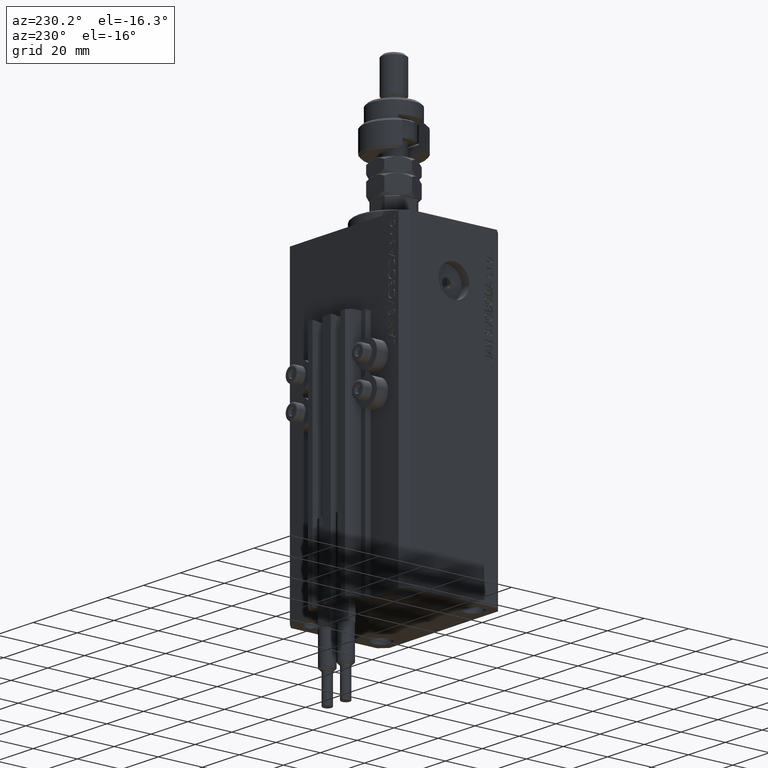
[diagram: clean part render]
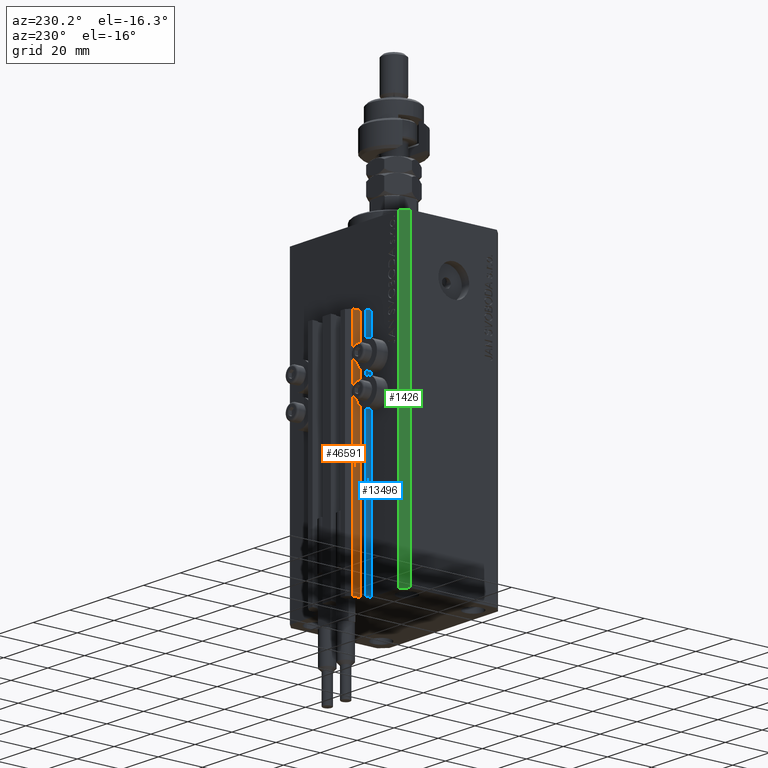
[diagram: same view with three faces highlighted in distinct colors, each labeled with its STEP entity id]
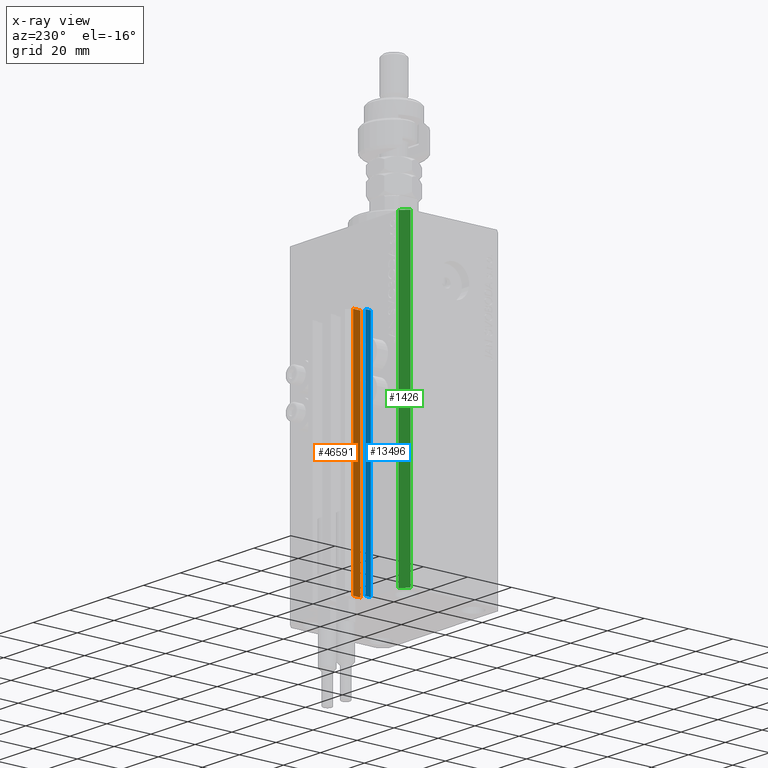
[diagram: x-ray of the same camera — body ghosted, the three highlighted faces saturated]
A machine part, auxiliary view with three faces highlighted in distinct colors.
The next image is the same camera in x-ray (body ghosted, the three faces saturated) — at least one of them is partly hidden behind the body in this view.
Their STEP definitions:

[orange] entity #46591 — the highlighted planar face has unit normal (-1, 0, 0).
#27 = DIRECTION ( 'NONE',  ( -1.000000000000000000, 0.000000000000000000, 0.000000000000000000 ) ) ;
#70 = EDGE_LOOP ( 'NONE', ( #36078, #47168, #4438, #34775 ) ) ;
#849 = VECTOR ( 'NONE', #13190, 1000.000000000000000 ) ;
#1422 = EDGE_CURVE ( 'NONE', #47834, #6404, #37184, .T. ) ;
#3735 = AXIS2_PLACEMENT_3D ( 'NONE', #40113, #27, #43222 ) ;
#4438 = ORIENTED_EDGE ( 'NONE', *, *, #31235, .T. ) ;
#4721 = LINE ( 'NONE', #36337, #849 ) ;
#4899 = LINE ( 'NONE', #9263, #41911 ) ;
#6404 = VERTEX_POINT ( 'NONE', #26199 ) ;
#7615 = VERTEX_POINT ( 'NONE', #34081 ) ;
#9263 = CARTESIAN_POINT ( 'NONE',  ( -12.00000000000000000, 28.49999999999948841, -137.0000000000000000 ) ) ;
#9683 = VECTOR ( 'NONE', #10868, 1000.000000000000000 ) ;
#10868 = DIRECTION ( 'NONE',  ( 0.000000000000000000, -1.000000000000000000, 0.000000000000000000 ) ) ;
#13190 = DIRECTION ( 'NONE',  ( 0.000000000000000000, -1.000000000000000000, 0.000000000000000000 ) ) ;
#20060 = DIRECTION ( 'NONE',  ( 0.000000000000000000, 0.000000000000000000, 1.000000000000000000 ) ) ;
#23420 = FACE_OUTER_BOUND ( 'NONE', #70, .T. ) ;
#25102 = CARTESIAN_POINT ( 'NONE',  ( -12.00000000000000000, 25.19999999999949125, -137.0000000000000000 ) ) ;
#26033 = EDGE_CURVE ( 'NONE', #7615, #6404, #33756, .T. ) ;
#26199 = CARTESIAN_POINT ( 'NONE',  ( -12.00000000000000000, 25.19999999999949125, -33.00000000000000000 ) ) ;
#26550 = CARTESIAN_POINT ( 'NONE',  ( -12.00000000000000000, 28.49999999999948841, -33.00000000000000000 ) ) ;
#28187 = DIRECTION ( 'NONE',  ( 0.000000000000000000, 0.000000000000000000, 1.000000000000000000 ) ) ;
#30709 = EDGE_CURVE ( 'NONE', #35732, #7615, #4899, .T. ) ;
#31235 = EDGE_CURVE ( 'NONE', #35732, #47834, #4721, .T. ) ;
#33756 = LINE ( 'NONE', #26550, #9683 ) ;
#34081 = CARTESIAN_POINT ( 'NONE',  ( -12.00000000000000000, 28.49999999999948841, -33.00000000000000000 ) ) ;
#34775 = ORIENTED_EDGE ( 'NONE', *, *, #1422, .T. ) ;
#35732 = VERTEX_POINT ( 'NONE', #36492 ) ;
#36078 = ORIENTED_EDGE ( 'NONE', *, *, #26033, .F. ) ;
#36337 = CARTESIAN_POINT ( 'NONE',  ( -12.00000000000000000, 28.49999999999948841, -137.0000000000000000 ) ) ;
#36492 = CARTESIAN_POINT ( 'NONE',  ( -12.00000000000000000, 28.49999999999948841, -137.0000000000000000 ) ) ;
#37184 = LINE ( 'NONE', #25102, #45880 ) ;
#39111 = PLANE ( 'NONE',  #3735 ) ;
#40113 = CARTESIAN_POINT ( 'NONE',  ( -12.00000000000000000, 28.49999999999948841, -137.0000000000000000 ) ) ;
#41911 = VECTOR ( 'NONE', #20060, 1000.000000000000000 ) ;
#43222 = DIRECTION ( 'NONE',  ( 0.000000000000000000, 0.000000000000000000, 1.000000000000000000 ) ) ;
#45880 = VECTOR ( 'NONE', #28187, 1000.000000000000000 ) ;
#46008 = CARTESIAN_POINT ( 'NONE',  ( -12.00000000000000000, 25.19999999999949125, -137.0000000000000000 ) ) ;
#46591 = ADVANCED_FACE ( 'NONE', ( #23420 ), #39111, .T. ) ;
#47168 = ORIENTED_EDGE ( 'NONE', *, *, #30709, .F. ) ;
#47834 = VERTEX_POINT ( 'NONE', #46008 ) ;

[blue] entity #13496 — the highlighted planar face has unit normal (-1, 0, 0).
#4586 = ORIENTED_EDGE ( 'NONE', *, *, #25906, .F. ) ;
#5971 = EDGE_LOOP ( 'NONE', ( #34148, #4586, #49677, #43327 ) ) ;
#6224 = VERTEX_POINT ( 'NONE', #47341 ) ;
#7452 = DIRECTION ( 'NONE',  ( -1.000000000000000000, 0.000000000000000000, 0.000000000000000000 ) ) ;
#12027 = CARTESIAN_POINT ( 'NONE',  ( -14.50000000000000000, 24.99999999999949196, -33.00000000000000000 ) ) ;
#13496 = ADVANCED_FACE ( 'NONE', ( #42676 ), #23387, .T. ) ;
#14643 = CARTESIAN_POINT ( 'NONE',  ( -14.50000000000000000, 24.99999999999949196, -137.0000000000000000 ) ) ;
#14971 = VERTEX_POINT ( 'NONE', #43071 ) ;
#15084 = CARTESIAN_POINT ( 'NONE',  ( -14.50000000000000000, 24.99999999999949196, -137.0000000000000000 ) ) ;
#16371 = LINE ( 'NONE', #12027, #50203 ) ;
#16757 = LINE ( 'NONE', #47393, #19800 ) ;
#18951 = DIRECTION ( 'NONE',  ( 0.000000000000000000, 0.000000000000000000, 1.000000000000000000 ) ) ;
#19626 = CARTESIAN_POINT ( 'NONE',  ( -14.50000000000000000, 24.99999999999949196, -137.0000000000000000 ) ) ;
#19800 = VECTOR ( 'NONE', #32189, 1000.000000000000000 ) ;
#20757 = DIRECTION ( 'NONE',  ( 0.000000000000000000, -1.000000000000000000, 0.000000000000000000 ) ) ;
#22616 = DIRECTION ( 'NONE',  ( 0.000000000000000000, 0.000000000000000000, 1.000000000000000000 ) ) ;
#22817 = LINE ( 'NONE', #15084, #30181 ) ;
#23387 = PLANE ( 'NONE',  #35610 ) ;
#25906 = EDGE_CURVE ( 'NONE', #6224, #26566, #22817, .T. ) ;
#26566 = VERTEX_POINT ( 'NONE', #47408 ) ;
#30181 = VECTOR ( 'NONE', #18951, 1000.000000000000000 ) ;
#32189 = DIRECTION ( 'NONE',  ( 0.000000000000000000, 0.000000000000000000, 1.000000000000000000 ) ) ;
#32282 = EDGE_CURVE ( 'NONE', #14971, #45537, #16757, .T. ) ;
#34148 = ORIENTED_EDGE ( 'NONE', *, *, #36821, .F. ) ;
#35610 = AXIS2_PLACEMENT_3D ( 'NONE', #14643, #7452, #22616 ) ;
#36821 = EDGE_CURVE ( 'NONE', #26566, #45537, #16371, .T. ) ;
#38067 = VECTOR ( 'NONE', #43797, 1000.000000000000000 ) ;
#41759 = EDGE_CURVE ( 'NONE', #6224, #14971, #47660, .T. ) ;
#42676 = FACE_OUTER_BOUND ( 'NONE', #5971, .T. ) ;
#43071 = CARTESIAN_POINT ( 'NONE',  ( -14.50000000000000000, 22.49999999999949907, -137.0000000000000000 ) ) ;
#43327 = ORIENTED_EDGE ( 'NONE', *, *, #32282, .T. ) ;
#43797 = DIRECTION ( 'NONE',  ( 0.000000000000000000, -1.000000000000000000, 0.000000000000000000 ) ) ;
#45344 = CARTESIAN_POINT ( 'NONE',  ( -14.50000000000000000, 22.49999999999949907, -33.00000000000000000 ) ) ;
#45537 = VERTEX_POINT ( 'NONE', #45344 ) ;
#47341 = CARTESIAN_POINT ( 'NONE',  ( -14.50000000000000000, 24.99999999999949196, -137.0000000000000000 ) ) ;
#47393 = CARTESIAN_POINT ( 'NONE',  ( -14.50000000000000000, 22.49999999999949907, -137.0000000000000000 ) ) ;
#47408 = CARTESIAN_POINT ( 'NONE',  ( -14.50000000000000000, 24.99999999999949196, -33.00000000000000000 ) ) ;
#47660 = LINE ( 'NONE', #19626, #38067 ) ;
#49677 = ORIENTED_EDGE ( 'NONE', *, *, #41759, .T. ) ;
#50203 = VECTOR ( 'NONE', #20757, 1000.000000000000000 ) ;

[green] entity #1426 — the highlighted planar face has unit normal (-0.7071, 0.7071, 0).
#677 = ORIENTED_EDGE ( 'NONE', *, *, #7153, .T. ) ;
#847 = CARTESIAN_POINT ( 'NONE',  ( -29.49999999999650413, 22.49999999999949907, -137.0000000000000000 ) ) ;
#1426 = ADVANCED_FACE ( 'NONE', ( #6318 ), #2723, .T. ) ;
#2723 = PLANE ( 'NONE',  #47550 ) ;
#3211 = CARTESIAN_POINT ( 'NONE',  ( -32.49999999999650413, 19.49999999999949907, -137.0000000000000000 ) ) ;
#6318 = FACE_OUTER_BOUND ( 'NONE', #16878, .T. ) ;
#7063 = LINE ( 'NONE', #3211, #36623 ) ;
#7153 = EDGE_CURVE ( 'NONE', #12386, #33033, #28827, .T. ) ;
#9092 = CARTESIAN_POINT ( 'NONE',  ( -29.49999999999650413, 22.49999999999949907, 0.000000000000000000 ) ) ;
#12386 = VERTEX_POINT ( 'NONE', #27043 ) ;
#12942 = LINE ( 'NONE', #9092, #31763 ) ;
#14029 = DIRECTION ( 'NONE',  ( -0.7071067811865474617, -0.7071067811865474617, 0.000000000000000000 ) ) ;
#16878 = EDGE_LOOP ( 'NONE', ( #23438, #23539, #677, #33792 ) ) ;
#17261 = LINE ( 'NONE', #48395, #40770 ) ;
#19820 = EDGE_CURVE ( 'NONE', #12386, #24768, #17261, .T. ) ;
#21232 = CARTESIAN_POINT ( 'NONE',  ( -29.49999999999650413, 22.49999999999949907, 0.000000000000000000 ) ) ;
#22250 = EDGE_CURVE ( 'NONE', #33033, #35001, #7063, .T. ) ;
#22748 = DIRECTION ( 'NONE',  ( 0.000000000000000000, 0.000000000000000000, 1.000000000000000000 ) ) ;
#23438 = ORIENTED_EDGE ( 'NONE', *, *, #24238, .F. ) ;
#23539 = ORIENTED_EDGE ( 'NONE', *, *, #19820, .F. ) ;
#23729 = CARTESIAN_POINT ( 'NONE',  ( -32.49999999999650413, 19.49999999999949907, -137.0000000000000000 ) ) ;
#24238 = EDGE_CURVE ( 'NONE', #24768, #35001, #12942, .T. ) ;
#24488 = DIRECTION ( 'NONE',  ( -0.7071067811865474617, -0.7071067811865474617, 0.000000000000000000 ) ) ;
#24768 = VERTEX_POINT ( 'NONE', #21232 ) ;
#27043 = CARTESIAN_POINT ( 'NONE',  ( -29.49999999999650413, 22.49999999999949907, -137.0000000000000000 ) ) ;
#28827 = LINE ( 'NONE', #847, #39394 ) ;
#29115 = DIRECTION ( 'NONE',  ( -0.7071067811865474617, -0.7071067811865474617, 0.000000000000000000 ) ) ;
#31763 = VECTOR ( 'NONE', #29115, 1000.000000000000114 ) ;
#33033 = VERTEX_POINT ( 'NONE', #23729 ) ;
#33792 = ORIENTED_EDGE ( 'NONE', *, *, #22250, .T. ) ;
#35001 = VERTEX_POINT ( 'NONE', #37410 ) ;
#36623 = VECTOR ( 'NONE', #22748, 1000.000000000000000 ) ;
#37410 = CARTESIAN_POINT ( 'NONE',  ( -32.49999999999650413, 19.49999999999949907, 0.000000000000000000 ) ) ;
#38181 = CARTESIAN_POINT ( 'NONE',  ( -29.49999999999650413, 22.49999999999949907, -137.0000000000000000 ) ) ;
#39394 = VECTOR ( 'NONE', #24488, 1000.000000000000114 ) ;
#40770 = VECTOR ( 'NONE', #44784, 1000.000000000000000 ) ;
#44784 = DIRECTION ( 'NONE',  ( 0.000000000000000000, 0.000000000000000000, 1.000000000000000000 ) ) ;
#45654 = DIRECTION ( 'NONE',  ( -0.7071067811865475727, 0.7071067811865475727, 0.000000000000000000 ) ) ;
#47550 = AXIS2_PLACEMENT_3D ( 'NONE', #38181, #45654, #14029 ) ;
#48395 = CARTESIAN_POINT ( 'NONE',  ( -29.49999999999650413, 22.49999999999949907, -137.0000000000000000 ) ) ;